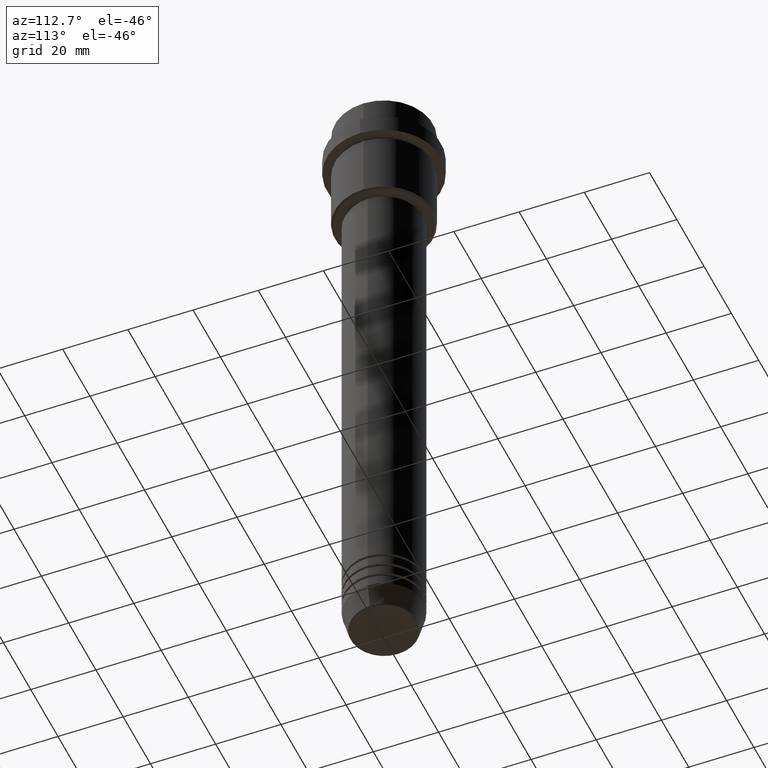
[diagram: clean part render]
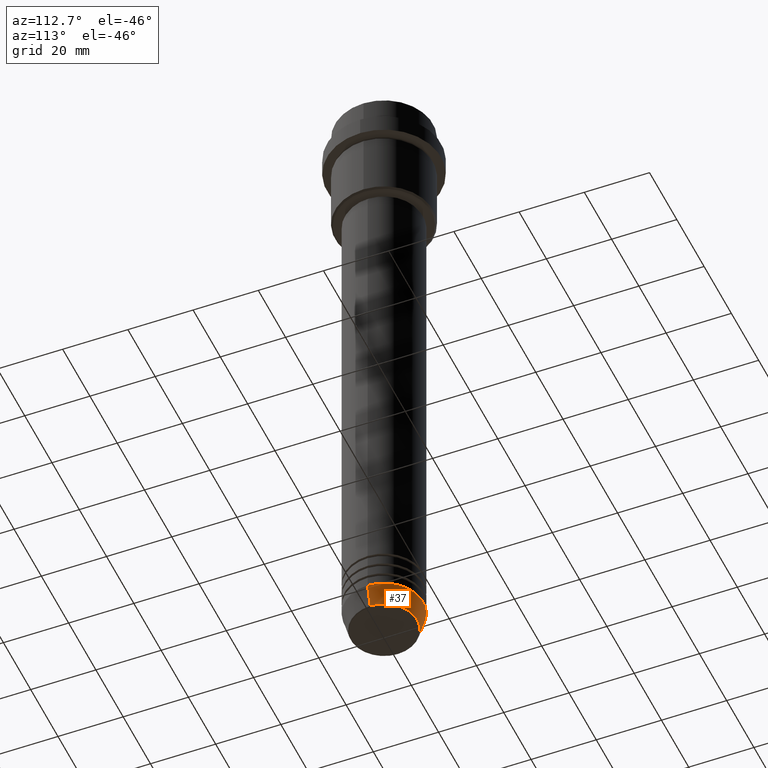
[diagram: same view with one face highlighted and labeled with its STEP entity id]
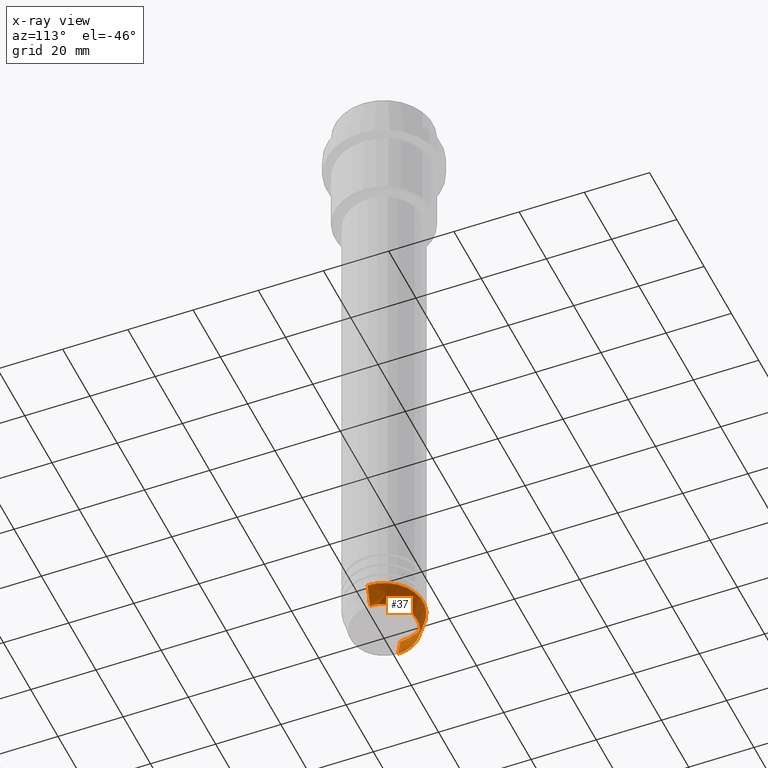
[diagram: x-ray of the same camera — body ghosted, the highlighted face saturated]
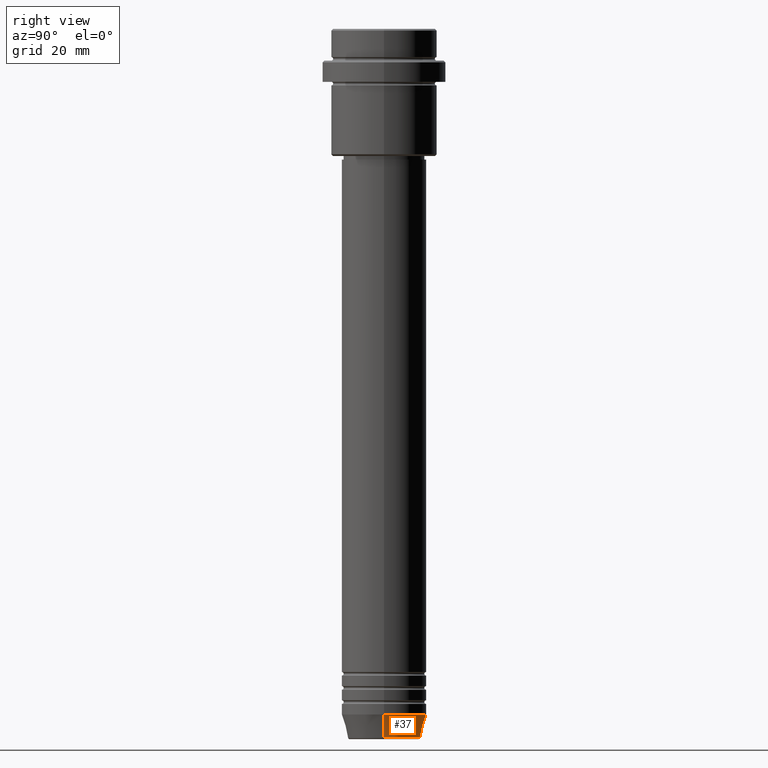
[diagram: same view with one face highlighted and labeled with its STEP entity id]
A machine part, auxiliary view. The second image highlights one B-rep face of the part: STEP entity #37.
The next image is the same camera in x-ray: the body ghosted, the highlighted face saturated — about 0% of this face is hidden behind the body in this view.
A second angle (right view) of the same face is appended — the face is thin or edge-on in the first view.
In plain terms, the highlighted conical surface has half-angle 15 deg.
Its self-contained STEP definition (entity closure, byte-faithful):
#21 = AXIS2_PLACEMENT_3D ( 'NONE', #1166, #963, #513 ) ;
#37 = ADVANCED_FACE ( 'NONE', ( #85 ), #580, .T. ) ;
#78 = DIRECTION ( 'NONE',  ( 0.2588190451025213501, 0.000000000000000000, 0.9659258262890680902 ) ) ;
#85 = FACE_OUTER_BOUND ( 'NONE', #1246, .T. ) ;
#102 = CARTESIAN_POINT ( 'NONE',  ( 0.000000000000000000, 0.000000000000000000, -200.6294095225512706 ) ) ;
#152 = DIRECTION ( 'NONE',  ( 1.000000000000000000, 0.000000000000000000, 0.000000000000000000 ) ) ;
#222 = VECTOR ( 'NONE', #727, 1000.000000000000000 ) ;
#263 = AXIS2_PLACEMENT_3D ( 'NONE', #102, #668, #152 ) ;
#281 = CARTESIAN_POINT ( 'NONE',  ( -12.00000000000000000, 1.469576158976823947E-15, -194.0000000000000000 ) ) ;
#298 = VERTEX_POINT ( 'NONE', #495 ) ;
#353 = AXIS2_PLACEMENT_3D ( 'NONE', #359, #875, #906 ) ;
#359 = CARTESIAN_POINT ( 'NONE',  ( 0.000000000000000000, 0.000000000000000000, -194.0000000000000000 ) ) ;
#369 = ORIENTED_EDGE ( 'NONE', *, *, #618, .F. ) ;
#390 = VERTEX_POINT ( 'NONE', #531 ) ;
#495 = CARTESIAN_POINT ( 'NONE',  ( 10.22365507213719127, 0.000000000000000000, -200.6294095225512706 ) ) ;
#509 = CARTESIAN_POINT ( 'NONE',  ( 12.00000000000000000, 0.000000000000000000, -194.0000000000000000 ) ) ;
#513 = DIRECTION ( 'NONE',  ( 1.000000000000000000, 0.000000000000000000, 0.000000000000000000 ) ) ;
#531 = CARTESIAN_POINT ( 'NONE',  ( 12.00000000000000000, 0.000000000000000000, -194.0000000000000000 ) ) ;
#551 = EDGE_CURVE ( 'NONE', #298, #641, #678, .T. ) ;
#555 = ORIENTED_EDGE ( 'NONE', *, *, #786, .T. ) ;
#579 = CARTESIAN_POINT ( 'NONE',  ( -10.22365507213719127, 1.360806402472382744E-15, -200.6294095225512706 ) ) ;
#580 = CONICAL_SURFACE ( 'NONE', #21, 12.00000000000000000, 0.2617993877991500740 ) ;
#618 = EDGE_CURVE ( 'NONE', #390, #1090, #973, .T. ) ;
#641 = VERTEX_POINT ( 'NONE', #579 ) ;
#668 = DIRECTION ( 'NONE',  ( -0.000000000000000000, -0.000000000000000000, 1.000000000000000000 ) ) ;
#678 = CIRCLE ( 'NONE', #263, 10.22365507213719127 ) ;
#727 = DIRECTION ( 'NONE',  ( -0.2588190451025213501, 3.169619151431772337E-17, 0.9659258262890680902 ) ) ;
#728 = EDGE_CURVE ( 'NONE', #298, #390, #839, .T. ) ;
#761 = ORIENTED_EDGE ( 'NONE', *, *, #551, .T. ) ;
#786 = EDGE_CURVE ( 'NONE', #641, #1090, #1355, .T. ) ;
#839 = LINE ( 'NONE', #509, #1240 ) ;
#857 = ORIENTED_EDGE ( 'NONE', *, *, #728, .F. ) ;
#875 = DIRECTION ( 'NONE',  ( -0.000000000000000000, -0.000000000000000000, 1.000000000000000000 ) ) ;
#906 = DIRECTION ( 'NONE',  ( 1.000000000000000000, 0.000000000000000000, 0.000000000000000000 ) ) ;
#963 = DIRECTION ( 'NONE',  ( -0.000000000000000000, -0.000000000000000000, 1.000000000000000000 ) ) ;
#973 = CIRCLE ( 'NONE', #353, 12.00000000000000000 ) ;
#1090 = VERTEX_POINT ( 'NONE', #1258 ) ;
#1166 = CARTESIAN_POINT ( 'NONE',  ( 0.000000000000000000, 0.000000000000000000, -194.0000000000000000 ) ) ;
#1240 = VECTOR ( 'NONE', #78, 1000.000000000000000 ) ;
#1246 = EDGE_LOOP ( 'NONE', ( #761, #555, #369, #857 ) ) ;
#1258 = CARTESIAN_POINT ( 'NONE',  ( -12.00000000000000000, 1.469576158976823947E-15, -194.0000000000000000 ) ) ;
#1355 = LINE ( 'NONE', #281, #222 ) ;